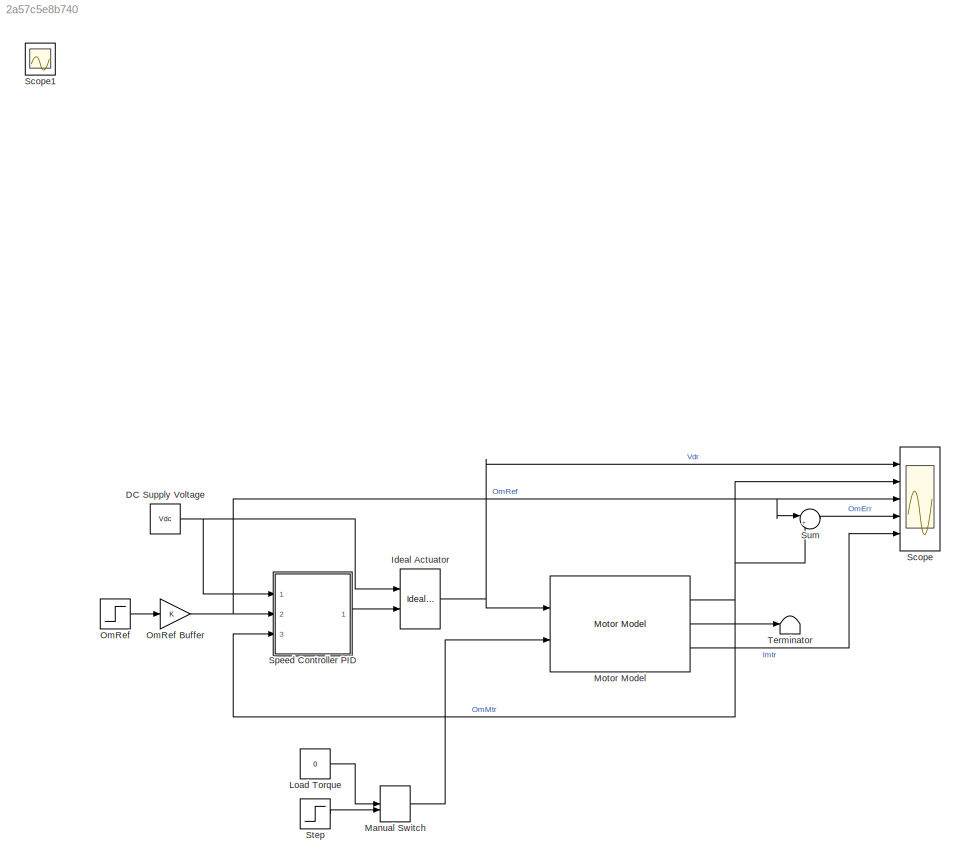
MODEL slx_2a57c5e8b740
KIND model
CONFIG AbsTol = auto
CONFIG FixedStep = auto
CONFIG MaxStep = auto
CONFIG MinStep = auto
CONFIG RelTol = 1e-3
CONFIG SampleTimeConstraint = Unconstrained
CONFIG Solver = VariableStepAuto
CONFIG SolverMode = Auto
CONFIG SolverName = VariableStepAuto
CONFIG StartTime = 0.0
CONFIG StopTime = 5
BLOCK [Constant] DC Supply Voltage
  Value = Vdc
BLOCK [Reference] Ideal Actuator  REF=LocalLib/Ideal Actuator
  Ports = [2, 1]
  SourceBlock = LocalLib/Ideal Actuator
  SourceType = SubSystem
BLOCK [Constant] Load Torque
  Value = 0
BLOCK [ManualSwitch] Manual Switch
  CurrentSetting = 0
BLOCK [Reference] Motor Model  REF=LocalLib/Motor Model
  Ports = [2, 3]
  SourceBlock = LocalLib/Motor Model
  SourceType = SubSystem
BLOCK [Step] OmRef
  After = 10000*2*pi/60
  SampleTime = 0
  Time = 0.01
BLOCK [Gain] OmRef Buffer
  OutDataTypeStr = Inherit: Inherit via internal rule
  ParamDataTypeStr = Inherit: Inherit via internal rule
  SaturateOnIntegerOverflow = off
BLOCK [Scope] Scope
  NumInputPorts = 5
  Ports = [5]
  ScopeSpecificationString = Simulink.scopes.TimeScopeBlockCfg('CurrentConfiguration', extmgr.ConfigurationSet(extmgr.Configuration('Core','General UI',true),extmgr.Configuration('Core','Source UI',true),extmgr.Configuration('Sources','WiredSimulink',true),extmgr.Configuration('Visuals','Time Domain',true,'SerializedDisplays',{struct('MinYLimReal','-1.2','MaxYLimReal','10.8','YLabelReal','','MinYLimMag','0.00000','MaxYLimMag'...<+6132ch>
BLOCK [Scope] Scope1
  IOType = viewer
  Ports = []
  ScopeSpecificationString = Simulink.scopes.TimeScopeBlockCfg('CurrentConfiguration', extmgr.ConfigurationSet(extmgr.Configuration('Core','General UI',true),extmgr.Configuration('Core','Source UI',true),extmgr.Configuration('Sources','WiredSimulink',true,'DataLoggingVariableName','ScopeData1'),extmgr.Configuration('Visuals','Time Domain',true,'SerializedDisplays',{struct('MinYLimReal','-1.25','MaxYLimReal','11.25','YLabelRea...<+3445ch>
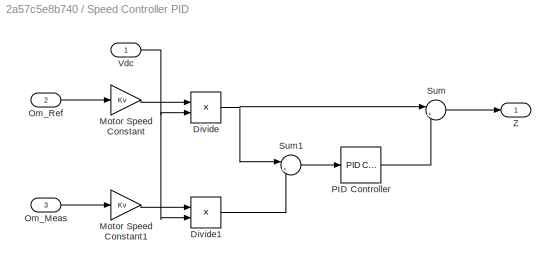
BLOCK [SubSystem] Speed Controller PID
  Ports = [3, 1]
  RequestExecContextInheritance = off
  Variant = off
BLOCK [Product] Speed Controller PID/Divide
  InputSameDT = off
  Inputs = */
  OutDataTypeStr = Inherit: Inherit via internal rule
  Ports = [2, 1]
  RndMeth = Floor
  SaturateOnIntegerOverflow = off
BLOCK [Product] Speed Controller PID/Divide1
  InputSameDT = off
  Inputs = */
  OutDataTypeStr = Inherit: Inherit via internal rule
  Ports = [2, 1]
  RndMeth = Floor
  SaturateOnIntegerOverflow = off
BLOCK [Gain] Speed Controller PID/Motor Speed Constant
  Gain = Kv
  OutDataTypeStr = Inherit: Inherit via internal rule
  ParamDataTypeStr = Inherit: Inherit via internal rule
  SaturateOnIntegerOverflow = off
BLOCK [Gain] Speed Controller PID/Motor Speed Constant1
  Gain = Kv
  OutDataTypeStr = Inherit: Inherit via internal rule
  ParamDataTypeStr = Inherit: Inherit via internal rule
  SaturateOnIntegerOverflow = off
BLOCK [Inport] Speed Controller PID/Om_Meas
  IconDisplay = Port number
  Port = 3
BLOCK [Inport] Speed Controller PID/Om_Ref
  IconDisplay = Port number
  Port = 2
BLOCK [Reference] Speed Controller PID/PID Controller  REF=simulink/Continuous/PID Controller
  Ports = [1, 1]
  SourceBlock = simulink/Continuous/PID Controller
  SourceType = PID 1dof
BLOCK [Sum] Speed Controller PID/Sum
  IconShape = round
  InputSameDT = off
  Inputs = |++
  OutDataTypeStr = Inherit: Inherit via internal rule
  Ports = [2, 1]
  SaturateOnIntegerOverflow = off
BLOCK [Sum] Speed Controller PID/Sum1
  IconShape = round
  InputSameDT = off
  Inputs = |+-
  OutDataTypeStr = Inherit: Inherit via internal rule
  Ports = [2, 1]
  SaturateOnIntegerOverflow = off
BLOCK [Inport] Speed Controller PID/Vdc
  IconDisplay = Port number
BLOCK [Outport] Speed Controller PID/Z
  IconDisplay = Port number
BLOCK [Step] Step
  After = -0.1
  SampleTime = 0
  Time = 2
BLOCK [Sum] Sum
  IconShape = round
  InputSameDT = off
  Inputs = |+-
  OutDataTypeStr = Inherit: Inherit via internal rule
  Ports = [2, 1]
  SaturateOnIntegerOverflow = off
BLOCK [Terminator] Terminator
NET DC Supply Voltage:1 -> Ideal Actuator:1, Speed Controller PID:1
NET Ideal Actuator:1 -> Motor Model:1, Scope:1
LINE Load Torque:1 -> Manual Switch:1
LINE Manual Switch:1 -> Motor Model:2
NET Motor Model:1 -> Scope:2, Speed Controller PID:3, Sum:2
LINE Motor Model:2 -> Terminator:1
LINE Motor Model:3 -> Scope:5
NET OmRef Buffer:1 -> Scope:3, Speed Controller PID:2, Sum:1
LINE OmRef:1 -> OmRef Buffer:1
LINE Speed Controller PID/Divide1:1 -> Speed Controller PID/Sum1:2
NET Speed Controller PID/Divide:1 -> Speed Controller PID/Sum1:1, Speed Controller PID/Sum:1
LINE Speed Controller PID/Motor Speed Constant1:1 -> Speed Controller PID/Divide1:1
LINE Speed Controller PID/Motor Speed Constant:1 -> Speed Controller PID/Divide:1
LINE Speed Controller PID/Om_Meas:1 -> Speed Controller PID/Motor Speed Constant1:1
LINE Speed Controller PID/Om_Ref:1 -> Speed Controller PID/Motor Speed Constant:1
LINE Speed Controller PID/PID Controller:1 -> Speed Controller PID/Sum:2
LINE Speed Controller PID/Sum1:1 -> Speed Controller PID/PID Controller:1
LINE Speed Controller PID/Sum:1 -> Speed Controller PID/Z:1
NET Speed Controller PID/Vdc:1 -> Speed Controller PID/Divide1:2, Speed Controller PID/Divide:2
LINE Speed Controller PID:1 -> Ideal Actuator:2
LINE Step:1 -> Manual Switch:2
LINE Sum:1 -> Scope:4
note: NET lines group one-source signal fan-out (src -> all destinations, sorted); 1:1 wires keep LINE
